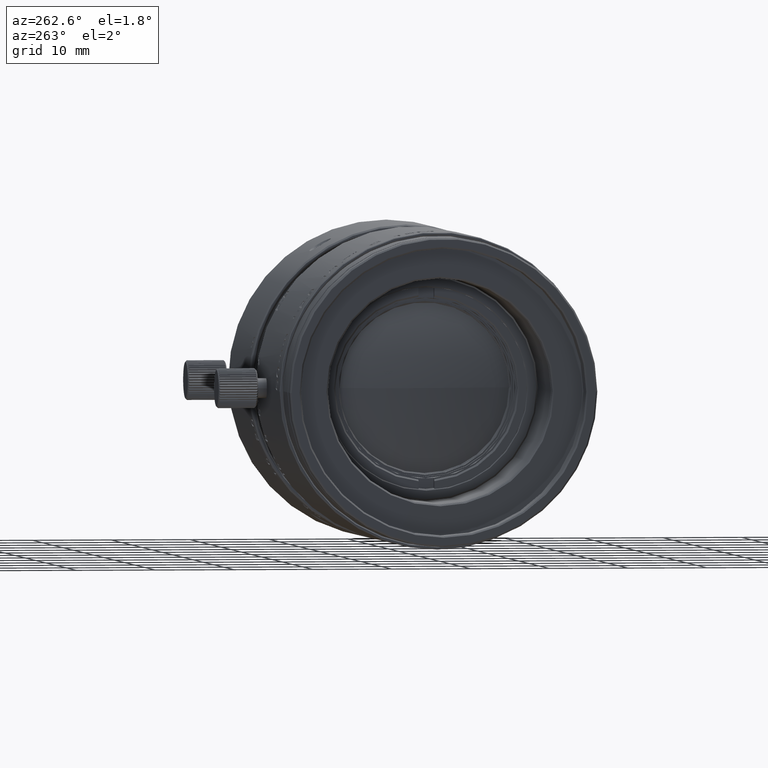
[diagram: clean part render]
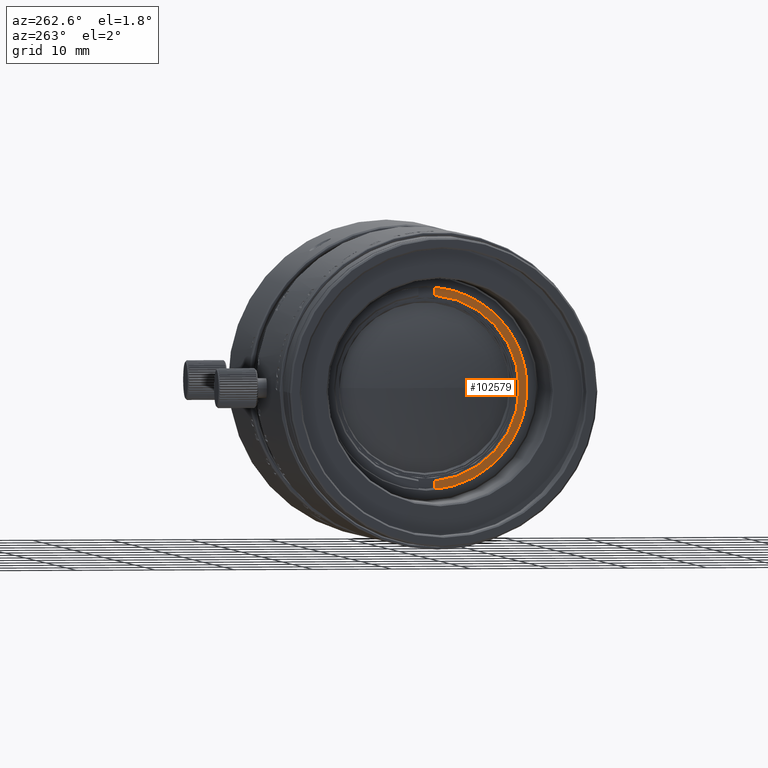
[diagram: same view with one face highlighted and labeled with its STEP entity id]
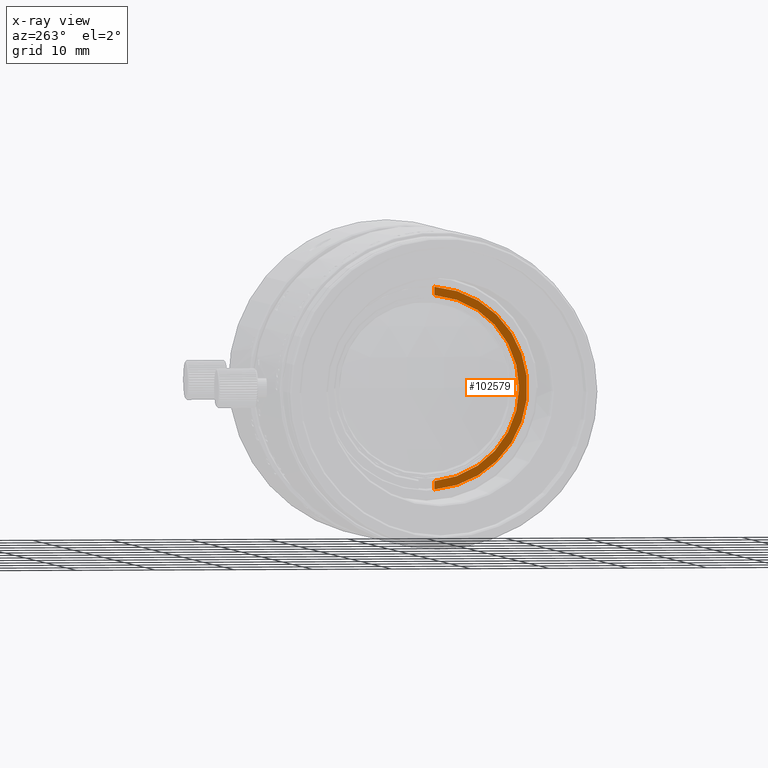
[diagram: x-ray of the same camera — body ghosted, the highlighted face saturated]
A machine part, auxiliary view. The second image highlights one B-rep face of the part: STEP entity #102579.
The next image is the same camera in x-ray: the body ghosted, the highlighted face saturated — about 0% of this face is hidden behind the body in this view.
In plain terms, the highlighted planar face has unit normal (1, 0, 0).
Its self-contained STEP definition (entity closure, byte-faithful):
#1534 = CARTESIAN_POINT ( 'NONE',  ( -1.000000000000000000, 11.70736947396999916, 0.000000000000000000 ) ) ;
#4000 = CARTESIAN_POINT ( 'NONE',  ( -1.000000000000000000, -11.70736947396999916, 0.000000000000000000 ) ) ;
#5707 = EDGE_CURVE ( 'NONE', #99187, #82869, #17671, .T. ) ;
#6991 = AXIS2_PLACEMENT_3D ( 'NONE', #64675, #73024, #98721 ) ;
#12798 = CARTESIAN_POINT ( 'NONE',  ( -1.000000000000000000, -12.76087771276000105, 2.704009855530999669E-14 ) ) ;
#15185 = VECTOR ( 'NONE', #47923, 1000.000000000000000 ) ;
#17459 = ORIENTED_EDGE ( 'NONE', *, *, #26887, .F. ) ;
#17671 = CIRCLE ( 'NONE', #6991, 12.79999999999999716 ) ;
#18810 = CARTESIAN_POINT ( 'NONE',  ( 0.000000000000000000, 0.000000000000000000, 0.000000000000000000 ) ) ;
#22714 = DIRECTION ( 'NONE',  ( -0.08510638297873372726, -0.9963718701249433263, 0.000000000000000000 ) ) ;
#26887 = EDGE_CURVE ( 'NONE', #62282, #76271, #58922, .T. ) ;
#27071 = VECTOR ( 'NONE', #104703, 1000.000000000000000 ) ;
#27701 = FACE_OUTER_BOUND ( 'NONE', #100277, .T. ) ;
#31095 = DIRECTION ( 'NONE',  ( 0.000000000000000000, 0.000000000000000000, -1.000000000000000000 ) ) ;
#43916 = DIRECTION ( 'NONE',  ( 0.000000000000000000, 0.000000000000000000, 1.000000000000000000 ) ) ;
#44931 = EDGE_CURVE ( 'NONE', #82869, #62282, #89264, .T. ) ;
#46318 = ORIENTED_EDGE ( 'NONE', *, *, #64759, .F. ) ;
#47923 = DIRECTION ( 'NONE',  ( 2.054976713333000035E-14, 1.000000000000000000, -2.791489734805999988E-14 ) ) ;
#53566 = AXIS2_PLACEMENT_3D ( 'NONE', #107565, #31095, #22714 ) ;
#54160 = ORIENTED_EDGE ( 'NONE', *, *, #44931, .F. ) ;
#58922 = CIRCLE ( 'NONE', #53566, 11.74999999999999645 ) ;
#61749 = PLANE ( 'NONE',  #71551 ) ;
#62079 = CARTESIAN_POINT ( 'NONE',  ( -1.000000000000000000, 12.76087771276000105, 2.704009855531999629E-14 ) ) ;
#62282 = VERTEX_POINT ( 'NONE', #4000 ) ;
#64675 = CARTESIAN_POINT ( 'NONE',  ( 0.000000000000000000, 1.018906136890999951E-13, 5.684341886080998387E-14 ) ) ;
#64759 = EDGE_CURVE ( 'NONE', #76271, #99187, #86338, .T. ) ;
#69566 = DIRECTION ( 'NONE',  ( 1.000000000000000000, 0.000000000000000000, 0.000000000000000000 ) ) ;
#71551 = AXIS2_PLACEMENT_3D ( 'NONE', #18810, #43916, #69566 ) ;
#73024 = DIRECTION ( 'NONE',  ( 0.000000000000000000, 0.000000000000000000, 1.000000000000000000 ) ) ;
#76271 = VERTEX_POINT ( 'NONE', #80995 ) ;
#80995 = CARTESIAN_POINT ( 'NONE',  ( -1.000000000000000000, 11.70736947396999916, 0.000000000000000000 ) ) ;
#82869 = VERTEX_POINT ( 'NONE', #95097 ) ;
#86338 = LINE ( 'NONE', #1534, #27071 ) ;
#89264 = LINE ( 'NONE', #12798, #15185 ) ;
#95097 = CARTESIAN_POINT ( 'NONE',  ( -1.000000000000000000, -12.76087771276000105, 2.704009855530999669E-14 ) ) ;
#98721 = DIRECTION ( 'NONE',  ( -0.07812500000000233147, 0.9969435713093292017, 0.000000000000000000 ) ) ;
#99187 = VERTEX_POINT ( 'NONE', #62079 ) ;
#100277 = EDGE_LOOP ( 'NONE', ( #104286, #46318, #17459, #54160 ) ) ;
#102579 = ADVANCED_FACE ( 'NONE', ( #27701 ), #61749, .F. ) ;
#104286 = ORIENTED_EDGE ( 'NONE', *, *, #5707, .F. ) ;
#104703 = DIRECTION ( 'NONE',  ( -2.234128529366000208E-14, 1.000000000000000000, 2.791489734805000028E-14 ) ) ;
#107565 = CARTESIAN_POINT ( 'NONE',  ( 6.757120286479999521E-14, 1.243449787579999883E-14, 0.000000000000000000 ) ) ;